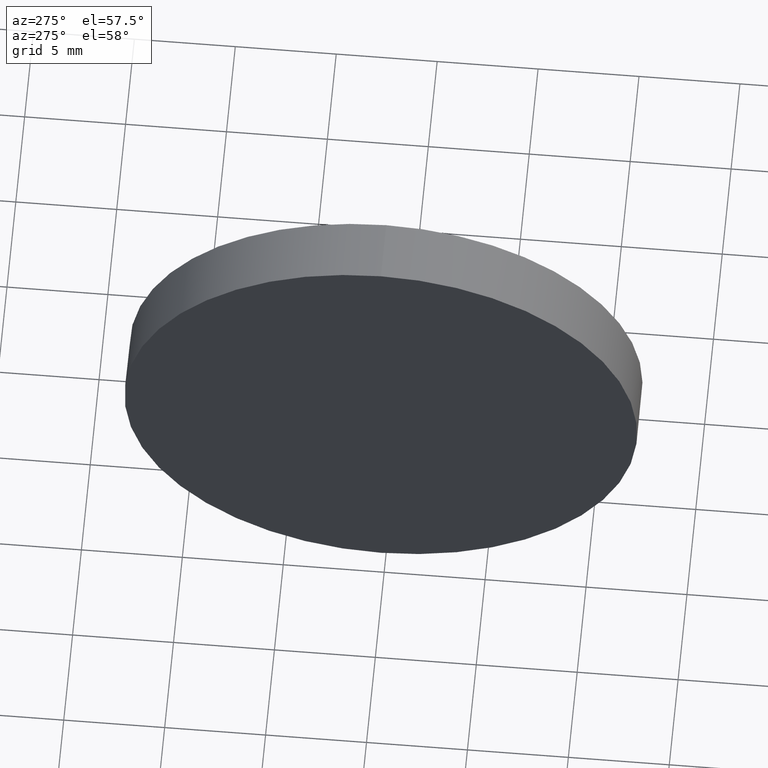
[diagram: clean part render]
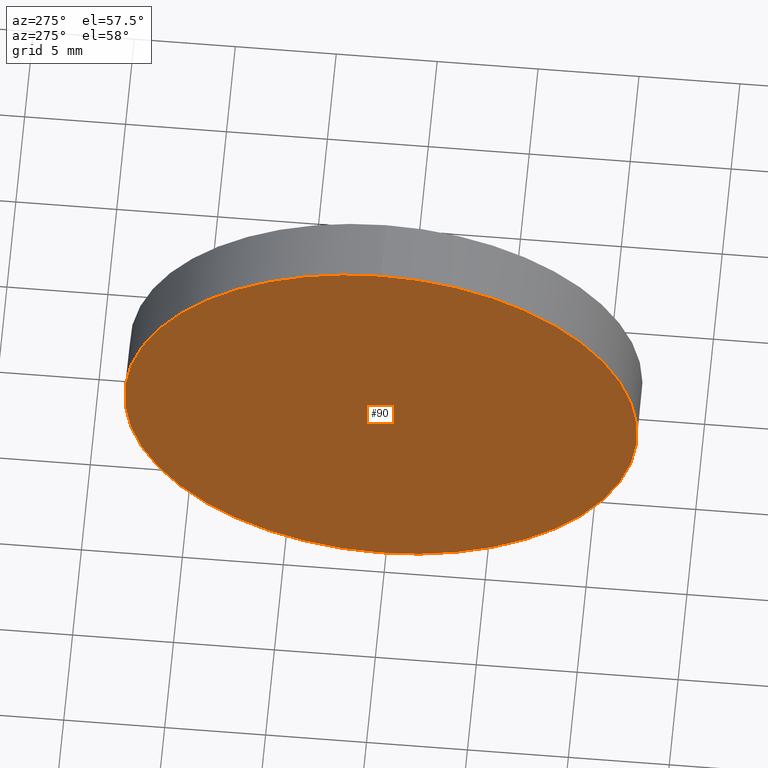
[diagram: same view with one face highlighted and labeled with its STEP entity id]
A machine part, auxiliary view. The second image highlights one B-rep face of the part: STEP entity #90.
In plain terms, the highlighted planar face has unit normal (1, 0, 0).
Its self-contained STEP definition (entity closure, byte-faithful):
#1 = DIRECTION ( 'NONE',  ( 0.0000000000000000000, 0.0000000000000000000, -1.000000000000000000 ) ) ;
#3 = EDGE_LOOP ( 'NONE', ( #129, #89 ) ) ;
#16 = CIRCLE ( 'NONE', #138, 12.70000000000000300 ) ;
#20 = VERTEX_POINT ( 'NONE', #163 ) ;
#21 = DIRECTION ( 'NONE',  ( -1.000000000000000000, -0.0000000000000000000, -0.0000000000000000000 ) ) ;
#27 = DIRECTION ( 'NONE',  ( -1.000000000000000000, -0.0000000000000000000, -0.0000000000000000000 ) ) ;
#39 = CARTESIAN_POINT ( 'NONE',  ( 115.7736064308381300, 65.23355492641219700, 12.70000000000000300 ) ) ;
#44 = VERTEX_POINT ( 'NONE', #39 ) ;
#63 = EDGE_CURVE ( 'NONE', #44, #20, #161, .T. ) ;
#71 = EDGE_CURVE ( 'NONE', #20, #44, #16, .T. ) ;
#87 = FACE_OUTER_BOUND ( 'NONE', #3, .T. ) ;
#89 = ORIENTED_EDGE ( 'NONE', *, *, #71, .T. ) ;
#90 = ADVANCED_FACE ( 'NONE', ( #87 ), #105, .F. ) ;
#105 = PLANE ( 'NONE',  #178 ) ;
#121 = DIRECTION ( 'NONE',  ( 0.0000000000000000000, 0.0000000000000000000, 1.000000000000000000 ) ) ;
#129 = ORIENTED_EDGE ( 'NONE', *, *, #63, .T. ) ;
#132 = DIRECTION ( 'NONE',  ( 0.0000000000000000000, 0.0000000000000000000, 1.000000000000000000 ) ) ;
#136 = DIRECTION ( 'NONE',  ( 1.000000000000000000, 0.0000000000000000000, 0.0000000000000000000 ) ) ;
#138 = AXIS2_PLACEMENT_3D ( 'NONE', #181, #27, #121 ) ;
#156 = AXIS2_PLACEMENT_3D ( 'NONE', #165, #21, #132 ) ;
#161 = CIRCLE ( 'NONE', #156, 12.70000000000000300 ) ;
#163 = CARTESIAN_POINT ( 'NONE',  ( 115.7736064308381300, 65.23355492641219700, -12.70000000000000300 ) ) ;
#165 = CARTESIAN_POINT ( 'NONE',  ( 115.7736064308381300, 65.23355492641219700, 0.0000000000000000000 ) ) ;
#169 = CARTESIAN_POINT ( 'NONE',  ( 115.7736064308381300, 65.23355492641219700, 0.0000000000000000000 ) ) ;
#178 = AXIS2_PLACEMENT_3D ( 'NONE', #169, #136, #1 ) ;
#181 = CARTESIAN_POINT ( 'NONE',  ( 115.7736064308381300, 65.23355492641219700, 0.0000000000000000000 ) ) ;